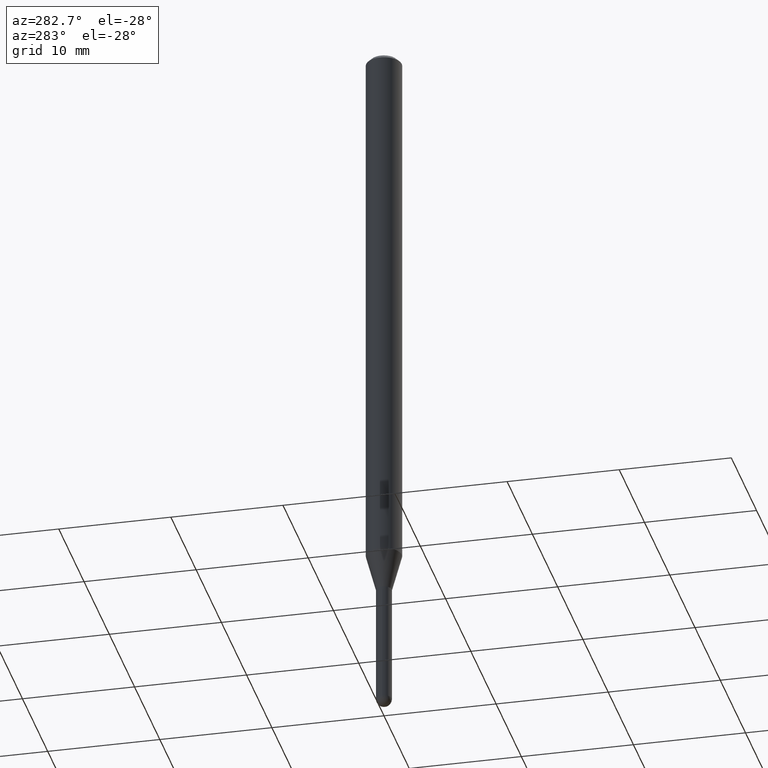
[diagram: clean part render]
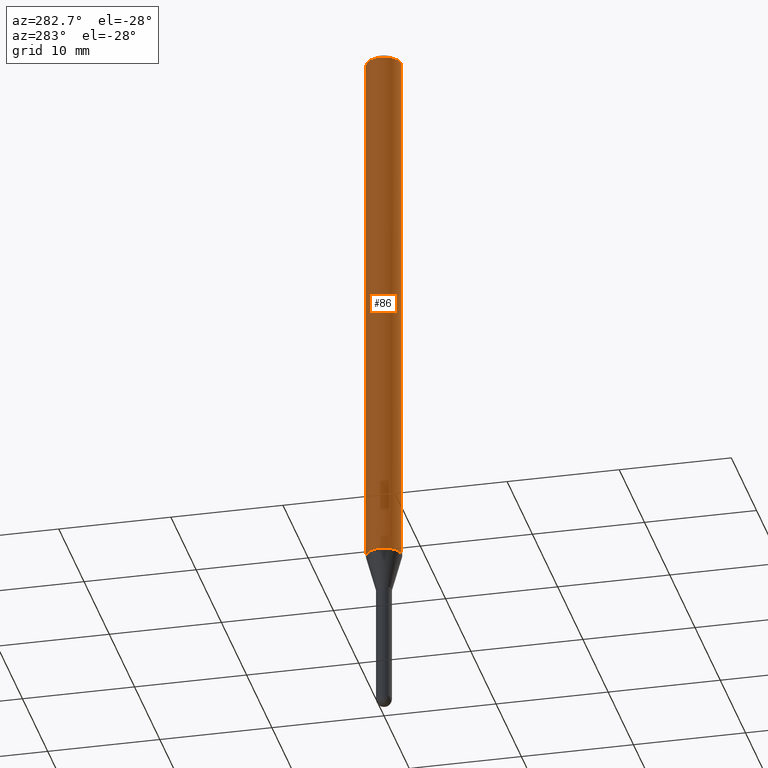
[diagram: same view with one face highlighted and labeled with its STEP entity id]
A machine part, auxiliary view. The second image highlights one B-rep face of the part: STEP entity #86.
In plain terms, the highlighted cylindrical surface (edge-blend (fillet) strip) has radius 1.5875 mm, axis along (-0, 0, 1).
Its self-contained STEP definition (entity closure, byte-faithful):
#10 = ORIENTED_EDGE ( 'NONE', *, *, #370, .F. ) ;
#13 = AXIS2_PLACEMENT_3D ( 'NONE', #217, #214, #331 ) ;
#21 = AXIS2_PLACEMENT_3D ( 'NONE', #455, #458, #506 ) ;
#27 = DIRECTION ( 'NONE',  ( -6.982962677686265922E-15, -1.000000000000000000, 3.491506698791517959E-15 ) ) ;
#46 = CIRCLE ( 'NONE', #21, 0.06250000000000000000 ) ;
#76 = CARTESIAN_POINT ( 'NONE',  ( -4.364351673553912750E-16, -0.06250000000000005551, -0.01500000000000011047 ) ) ;
#86 = ADVANCED_FACE ( 'NONE', ( #107 ), #186, .T. ) ;
#107 = FACE_OUTER_BOUND ( 'NONE', #496, .T. ) ;
#112 = VECTOR ( 'NONE', #138, 39.37007874015748143 ) ;
#138 = DIRECTION ( 'NONE',  ( -2.445451097427837098E-29, 3.491506698791517959E-15, 1.000000000000000000 ) ) ;
#146 = ORIENTED_EDGE ( 'NONE', *, *, #449, .T. ) ;
#176 = LINE ( 'NONE', #480, #401 ) ;
#186 = CYLINDRICAL_SURFACE ( 'NONE', #298, 0.06250000000000000000 ) ;
#208 = VERTEX_POINT ( 'NONE', #351 ) ;
#214 = DIRECTION ( 'NONE',  ( -2.445451097427837378E-29, 3.491506698791517959E-15, 1.000000000000000000 ) ) ;
#217 = CARTESIAN_POINT ( 'NONE',  ( 4.693745578721162808E-29, -6.701521918702610690E-15, -1.919378221735088097 ) ) ;
#230 = VERTEX_POINT ( 'NONE', #76 ) ;
#231 = CARTESIAN_POINT ( 'NONE',  ( 4.440892098501092576E-16, 0.06249999999999326927, -1.919378221735088319 ) ) ;
#248 = CARTESIAN_POINT ( 'NONE',  ( -4.364351673553448308E-16, -0.06250000000000671685, -1.919378221735087875 ) ) ;
#286 = CARTESIAN_POINT ( 'NONE',  ( 4.440892098500625669E-16, 0.06250000000000000000, -2.182191686744698724E-16 ) ) ;
#290 = EDGE_CURVE ( 'NONE', #488, #230, #176, .T. ) ;
#294 = DIRECTION ( 'NONE',  ( -2.445451097427837098E-29, 3.491506698791517959E-15, 1.000000000000000000 ) ) ;
#298 = AXIS2_PLACEMENT_3D ( 'NONE', #365, #326, #27 ) ;
#326 = DIRECTION ( 'NONE',  ( -2.445451097427837378E-29, 3.491506698791517959E-15, 1.000000000000000000 ) ) ;
#331 = DIRECTION ( 'NONE',  ( -6.982962677686265922E-15, -1.000000000000000000, 4.370956789862821150E-15 ) ) ;
#351 = CARTESIAN_POINT ( 'NONE',  ( 4.440892098501098492E-16, 0.06249999999999995143, -0.01500000000000054588 ) ) ;
#358 = VERTEX_POINT ( 'NONE', #231 ) ;
#361 = ORIENTED_EDGE ( 'NONE', *, *, #473, .F. ) ;
#365 = CARTESIAN_POINT ( 'NONE',  ( 0.000000000000000000, 0.000000000000000000, 0.000000000000000000 ) ) ;
#370 = EDGE_CURVE ( 'NONE', #208, #230, #46, .T. ) ;
#401 = VECTOR ( 'NONE', #294, 39.37007874015748143 ) ;
#439 = ORIENTED_EDGE ( 'NONE', *, *, #290, .T. ) ;
#449 = EDGE_CURVE ( 'NONE', #358, #488, #501, .T. ) ;
#455 = CARTESIAN_POINT ( 'NONE',  ( 3.668176646141836571E-31, -5.237260048187391028E-17, -0.01500000000000032904 ) ) ;
#458 = DIRECTION ( 'NONE',  ( -2.445451097427837378E-29, 3.491506698791517959E-15, 1.000000000000000000 ) ) ;
#473 = EDGE_CURVE ( 'NONE', #358, #208, #492, .T. ) ;
#480 = CARTESIAN_POINT ( 'NONE',  ( -4.364351673553916201E-16, -0.06250000000000000000, 2.182191686744698724E-16 ) ) ;
#488 = VERTEX_POINT ( 'NONE', #248 ) ;
#492 = LINE ( 'NONE', #286, #112 ) ;
#496 = EDGE_LOOP ( 'NONE', ( #361, #146, #439, #10 ) ) ;
#501 = CIRCLE ( 'NONE', #13, 0.06250000000000000000 ) ;
#506 = DIRECTION ( 'NONE',  ( -6.982962677686265922E-15, -1.000000000000000000, 3.483106191921935554E-15 ) ) ;